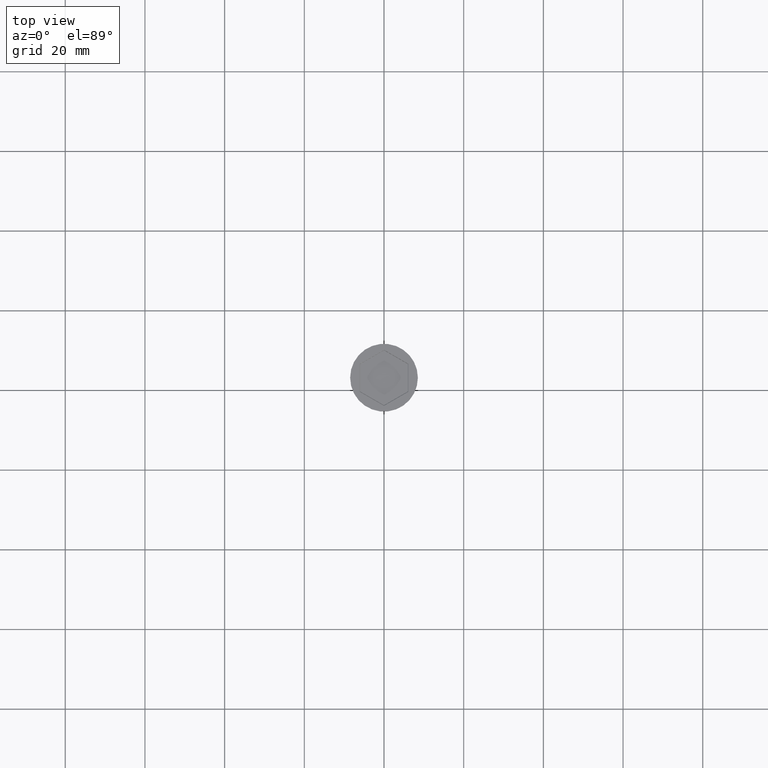
[diagram: clean part render]
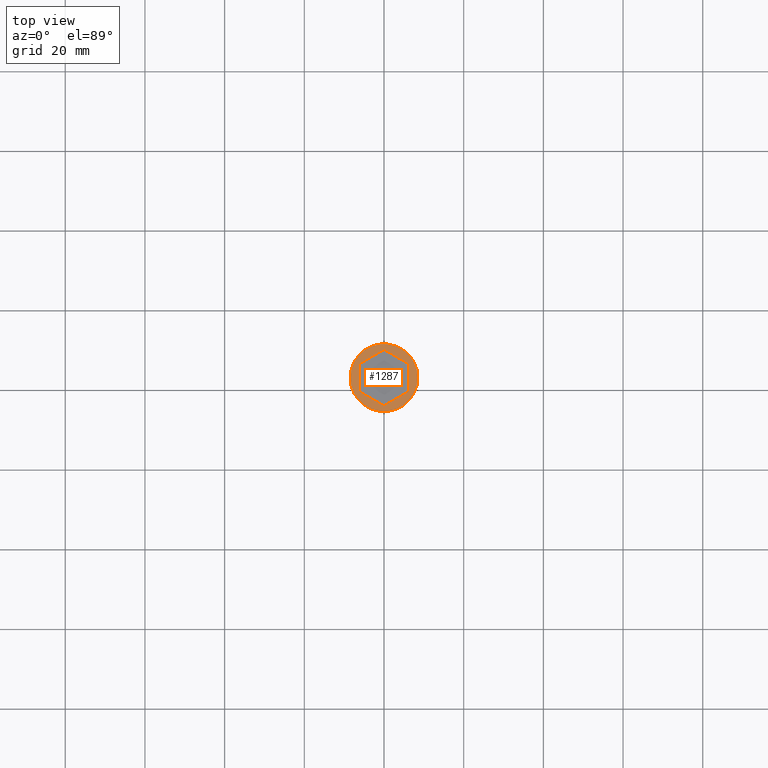
[diagram: same view with one face highlighted and labeled with its STEP entity id]
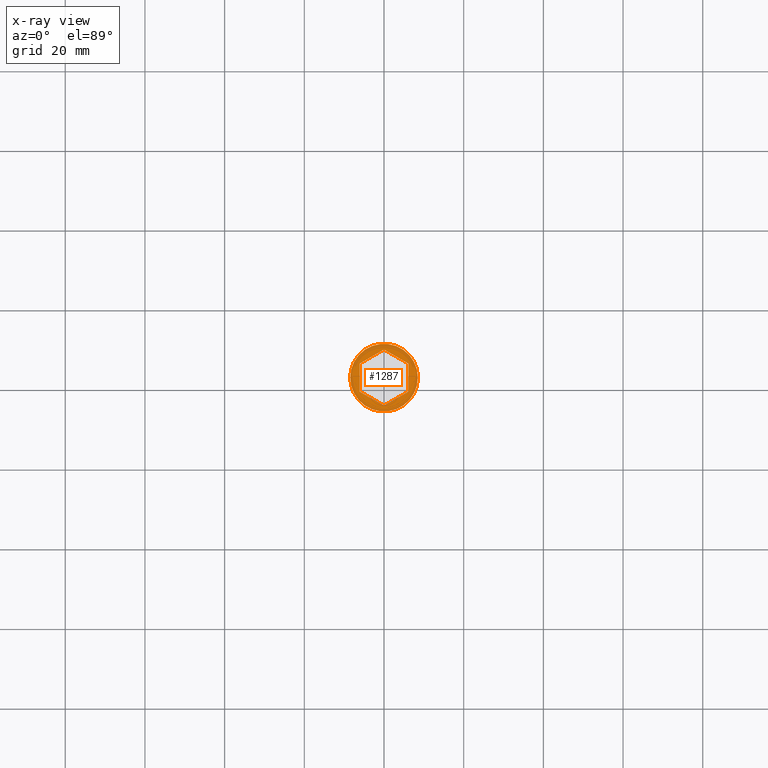
[diagram: x-ray of the same camera — body ghosted, the highlighted face saturated]
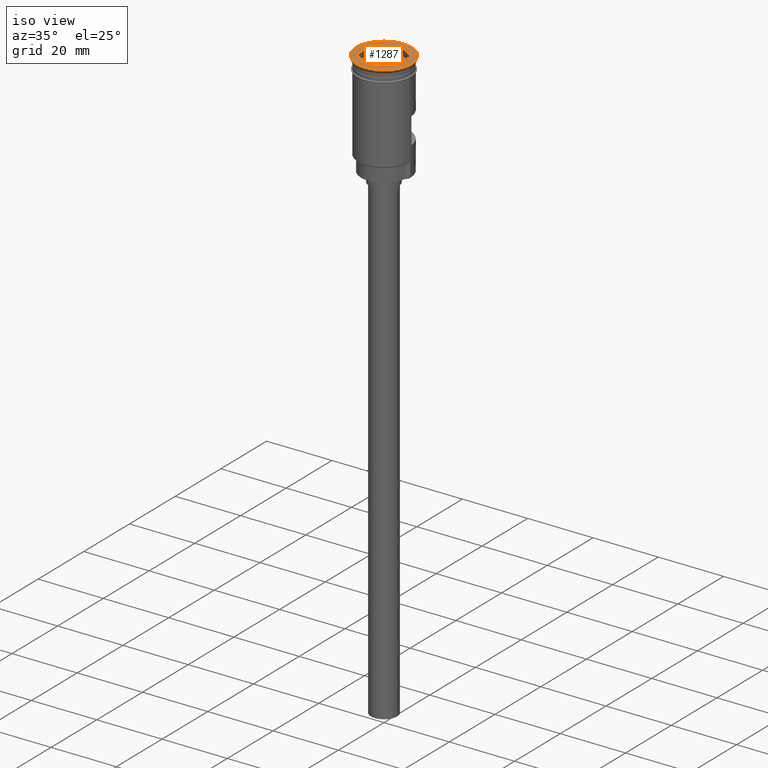
[diagram: same view with one face highlighted and labeled with its STEP entity id]
A machine part, top view. The second image highlights one B-rep face of the part: STEP entity #1287.
The next image is the same camera in x-ray: the body ghosted, the highlighted face saturated — about 0% of this face is hidden behind the body in this view.
A second angle (iso view) of the same face is appended — the face is thin or edge-on in the first view.
In plain terms, the highlighted planar face has unit normal (0, -0, 1).
Its self-contained STEP definition (entity closure, byte-faithful):
#5 = CARTESIAN_POINT ( 'NONE',  ( 0.05000000000000536654, -7.014805770653961048, 0.000000000000000000 ) ) ;
#8 = ORIENTED_EDGE ( 'NONE', *, *, #723, .T. ) ;
#18 = DIRECTION ( 'NONE',  ( 0.000000000000000000, -1.000000000000000000, -0.000000000000000000 ) ) ;
#49 = CARTESIAN_POINT ( 'NONE',  ( -9.509961900721253228E-16, 7.043673284113440403, 0.000000000000000000 ) ) ;
#57 = VERTEX_POINT ( 'NONE', #1210 ) ;
#67 = LINE ( 'NONE', #1417, #909 ) ;
#140 = ORIENTED_EDGE ( 'NONE', *, *, #1389, .T. ) ;
#145 = EDGE_CURVE ( 'NONE', #1264, #1445, #371, .T. ) ;
#154 = AXIS2_PLACEMENT_3D ( 'NONE', #1217, #870, #710 ) ;
#156 = VECTOR ( 'NONE', #1255, 999.9999999999998863 ) ;
#214 = ORIENTED_EDGE ( 'NONE', *, *, #672, .T. ) ;
#229 = CARTESIAN_POINT ( 'NONE',  ( -8.500000000000000000, 1.040949779275250140E-15, 0.000000000000000000 ) ) ;
#266 = LINE ( 'NONE', #1027, #1285 ) ;
#277 = LINE ( 'NONE', #5, #156 ) ;
#298 = ORIENTED_EDGE ( 'NONE', *, *, #1086, .T. ) ;
#302 = DIRECTION ( 'NONE',  ( -0.000000000000000000, -0.000000000000000000, 1.000000000000000000 ) ) ;
#371 = LINE ( 'NONE', #1111, #905 ) ;
#391 = LINE ( 'NONE', #1125, #885 ) ;
#453 = EDGE_CURVE ( 'NONE', #1212, #1264, #1574, .T. ) ;
#483 = VERTEX_POINT ( 'NONE', #1214 ) ;
#489 = FACE_OUTER_BOUND ( 'NONE', #691, .T. ) ;
#552 = CARTESIAN_POINT ( 'NONE',  ( 0.000000000000000000, 0.000000000000000000, 0.000000000000000000 ) ) ;
#610 = VERTEX_POINT ( 'NONE', #1529 ) ;
#628 = EDGE_CURVE ( 'NONE', #970, #770, #1110, .T. ) ;
#642 = DIRECTION ( 'NONE',  ( 1.000000000000000000, 0.000000000000000000, 0.000000000000000000 ) ) ;
#672 = EDGE_CURVE ( 'NONE', #770, #970, #1388, .T. ) ;
#691 = EDGE_LOOP ( 'NONE', ( #214, #1048 ) ) ;
#710 = DIRECTION ( 'NONE',  ( 1.000000000000000000, 0.000000000000000000, 0.000000000000000000 ) ) ;
#723 = EDGE_CURVE ( 'NONE', #610, #483, #67, .T. ) ;
#725 = AXIS2_PLACEMENT_3D ( 'NONE', #552, #768, #1250 ) ;
#749 = CARTESIAN_POINT ( 'NONE',  ( 6.100000000000007638, -3.521836642056722866, 0.000000000000000000 ) ) ;
#761 = DIRECTION ( 'NONE',  ( 0.8660254037844385966, 0.5000000000000002220, 0.000000000000000000 ) ) ;
#768 = DIRECTION ( 'NONE',  ( -0.000000000000000000, -0.000000000000000000, 1.000000000000000000 ) ) ;
#770 = VERTEX_POINT ( 'NONE', #1559 ) ;
#814 = ORIENTED_EDGE ( 'NONE', *, *, #145, .T. ) ;
#838 = DIRECTION ( 'NONE',  ( 0.8660254037844387076, -0.4999999999999998335, 0.000000000000000000 ) ) ;
#870 = DIRECTION ( 'NONE',  ( 0.000000000000000000, -0.000000000000000000, 1.000000000000000000 ) ) ;
#885 = VECTOR ( 'NONE', #887, 999.9999999999998863 ) ;
#887 = DIRECTION ( 'NONE',  ( -0.8660254037844385966, 0.5000000000000002220, 0.000000000000000000 ) ) ;
#905 = VECTOR ( 'NONE', #18, 1000.000000000000000 ) ;
#909 = VECTOR ( 'NONE', #1308, 1000.000000000000000 ) ;
#970 = VERTEX_POINT ( 'NONE', #229 ) ;
#977 = FACE_BOUND ( 'NONE', #1045, .T. ) ;
#986 = AXIS2_PLACEMENT_3D ( 'NONE', #1221, #302, #642 ) ;
#1027 = CARTESIAN_POINT ( 'NONE',  ( -0.05000000000000349998, 7.014805770653958383, 0.000000000000000000 ) ) ;
#1045 = EDGE_LOOP ( 'NONE', ( #8, #298, #1473, #814, #1247, #140 ) ) ;
#1048 = ORIENTED_EDGE ( 'NONE', *, *, #628, .T. ) ;
#1062 = VECTOR ( 'NONE', #838, 1000.000000000000000 ) ;
#1086 = EDGE_CURVE ( 'NONE', #483, #1212, #266, .T. ) ;
#1110 = CIRCLE ( 'NONE', #986, 8.500000000000000000 ) ;
#1111 = CARTESIAN_POINT ( 'NONE',  ( 6.100000000000007638, -3.464101615137756607, 0.000000000000000000 ) ) ;
#1125 = CARTESIAN_POINT ( 'NONE',  ( -6.050000000000004263, -3.550704155516205773, 0.000000000000000000 ) ) ;
#1210 = CARTESIAN_POINT ( 'NONE',  ( 6.606856988583603042E-17, -7.043673284113445732, 0.000000000000000000 ) ) ;
#1212 = VERTEX_POINT ( 'NONE', #49 ) ;
#1214 = CARTESIAN_POINT ( 'NONE',  ( -6.100000000000008527, 3.521836642056717537, 0.000000000000000000 ) ) ;
#1217 = CARTESIAN_POINT ( 'NONE',  ( 0.000000000000000000, 0.000000000000000000, 0.000000000000000000 ) ) ;
#1221 = CARTESIAN_POINT ( 'NONE',  ( 0.000000000000000000, 0.000000000000000000, 0.000000000000000000 ) ) ;
#1247 = ORIENTED_EDGE ( 'NONE', *, *, #1479, .T. ) ;
#1250 = DIRECTION ( 'NONE',  ( 1.000000000000000000, 0.000000000000000000, 0.000000000000000000 ) ) ;
#1255 = DIRECTION ( 'NONE',  ( -0.8660254037844385966, -0.5000000000000002220, 0.000000000000000000 ) ) ;
#1264 = VERTEX_POINT ( 'NONE', #1535 ) ;
#1285 = VECTOR ( 'NONE', #761, 999.9999999999998863 ) ;
#1287 = ADVANCED_FACE ( 'NONE', ( #977, #489 ), #1444, .T. ) ;
#1308 = DIRECTION ( 'NONE',  ( -1.251928832280966188E-16, 1.000000000000000000, 0.000000000000000000 ) ) ;
#1312 = CARTESIAN_POINT ( 'NONE',  ( 6.050000000000003375, 3.550704155516203553, 0.000000000000000000 ) ) ;
#1388 = CIRCLE ( 'NONE', #725, 8.500000000000000000 ) ;
#1389 = EDGE_CURVE ( 'NONE', #57, #610, #391, .T. ) ;
#1417 = CARTESIAN_POINT ( 'NONE',  ( -6.100000000000008527, 3.464101615137752166, 0.000000000000000000 ) ) ;
#1444 = PLANE ( 'NONE',  #154 ) ;
#1445 = VERTEX_POINT ( 'NONE', #749 ) ;
#1473 = ORIENTED_EDGE ( 'NONE', *, *, #453, .T. ) ;
#1479 = EDGE_CURVE ( 'NONE', #1445, #57, #277, .T. ) ;
#1529 = CARTESIAN_POINT ( 'NONE',  ( -6.100000000000007638, -3.521836642056722866, 0.000000000000000000 ) ) ;
#1535 = CARTESIAN_POINT ( 'NONE',  ( 6.100000000000007638, 3.521836642056720201, 0.000000000000000000 ) ) ;
#1559 = CARTESIAN_POINT ( 'NONE',  ( 8.500000000000000000, 0.000000000000000000, 0.000000000000000000 ) ) ;
#1574 = LINE ( 'NONE', #1312, #1062 ) ;